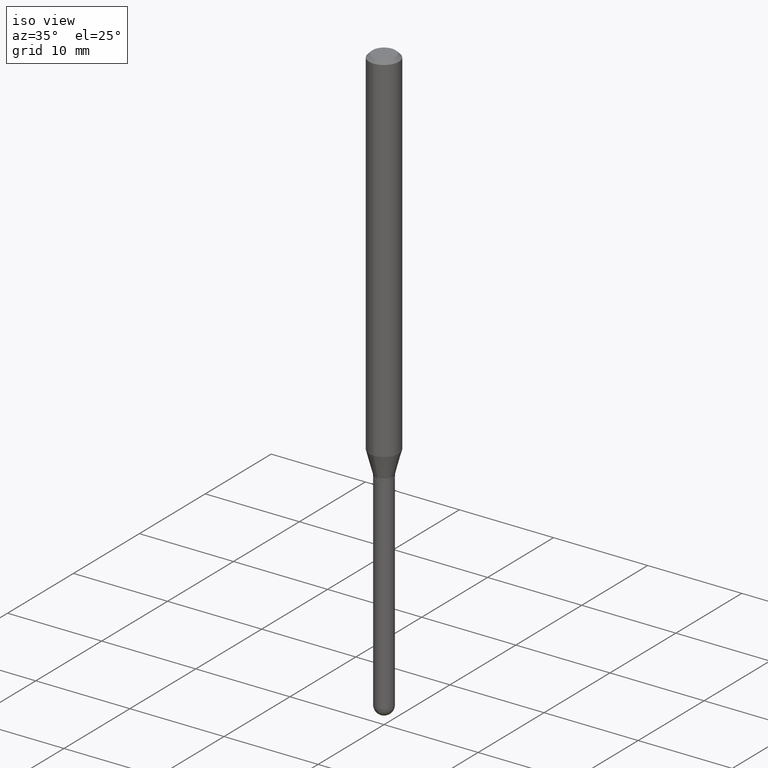
[diagram: clean part render]
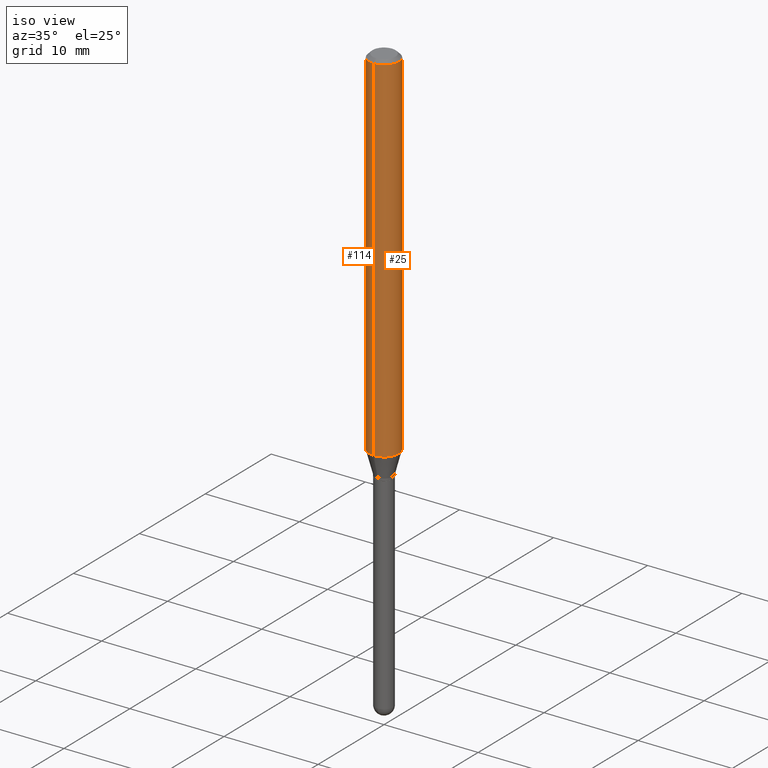
[diagram: same view with one multi-face feature highlighted, each face labeled with its STEP entity id]
A machine part, iso view. The highlighted faces form ONE feature: a constant-radius fillet chain: 2 tangent blend faces with common blend radius 1.5875 mm. The faces share edges in the B-rep.
Their STEP definitions:
[1] entity #114 (Cylinder):
#2 = VECTOR ( 'NONE', #90, 39.37007874015748143 ) ;
#12 = VERTEX_POINT ( 'NONE', #308 ) ;
#49 = DIRECTION ( 'NONE',  ( -2.445407841121714542E-29, 3.491568644283881835E-15, 1.000000000000000000 ) ) ;
#50 = DIRECTION ( 'NONE',  ( -2.445407841121714542E-29, 3.491568644283881835E-15, 1.000000000000000000 ) ) ;
#52 = AXIS2_PLACEMENT_3D ( 'NONE', #436, #50, #198 ) ;
#78 = DIRECTION ( 'NONE',  ( -2.445407841121714542E-29, 3.491568644283881835E-15, 1.000000000000000000 ) ) ;
#87 = FACE_OUTER_BOUND ( 'NONE', #239, .T. ) ;
#90 = DIRECTION ( 'NONE',  ( -2.445407841121714822E-29, 3.491568644283881835E-15, 1.000000000000000000 ) ) ;
#114 = ADVANCED_FACE ( 'NONE', ( #87 ), #477, .T. ) ;
#118 = CARTESIAN_POINT ( 'NONE',  ( -4.364351673553916201E-16, -0.06250000000000000000, 2.182230402677425900E-16 ) ) ;
#121 = CARTESIAN_POINT ( 'NONE',  ( -4.364351673553553325E-16, -0.06250000000000525968, -1.496698729810778117 ) ) ;
#129 = CARTESIAN_POINT ( 'NONE',  ( 4.440892098500625669E-16, 0.06250000000000000000, -2.182230402677425900E-16 ) ) ;
#168 = CIRCLE ( 'NONE', #306, 0.06250000000000000000 ) ;
#174 = EDGE_CURVE ( 'NONE', #12, #242, #279, .T. ) ;
#183 = AXIS2_PLACEMENT_3D ( 'NONE', #273, #49, #318 ) ;
#193 = ORIENTED_EDGE ( 'NONE', *, *, #174, .F. ) ;
#198 = DIRECTION ( 'NONE',  ( -6.982962677686265922E-15, -1.000000000000000000, 3.483106191921935554E-15 ) ) ;
#222 = ORIENTED_EDGE ( 'NONE', *, *, #227, .T. ) ;
#227 = EDGE_CURVE ( 'NONE', #232, #242, #379, .T. ) ;
#232 = VERTEX_POINT ( 'NONE', #121 ) ;
#239 = EDGE_LOOP ( 'NONE', ( #430, #247, #222, #193 ) ) ;
#242 = VERTEX_POINT ( 'NONE', #290 ) ;
#247 = ORIENTED_EDGE ( 'NONE', *, *, #295, .T. ) ;
#250 = VECTOR ( 'NONE', #400, 39.37007874015748143 ) ;
#273 = CARTESIAN_POINT ( 'NONE',  ( 0.000000000000000000, 0.000000000000000000, 0.000000000000000000 ) ) ;
#279 = CIRCLE ( 'NONE', #52, 0.06250000000000000000 ) ;
#283 = VERTEX_POINT ( 'NONE', #424 ) ;
#290 = CARTESIAN_POINT ( 'NONE',  ( -4.364351673553912750E-16, -0.06250000000000005551, -0.01500000000000011047 ) ) ;
#294 = DIRECTION ( 'NONE',  ( -6.982962677686265922E-15, -1.000000000000000000, 4.370956789862821150E-15 ) ) ;
#295 = EDGE_CURVE ( 'NONE', #283, #232, #168, .T. ) ;
#306 = AXIS2_PLACEMENT_3D ( 'NONE', #499, #78, #294 ) ;
#308 = CARTESIAN_POINT ( 'NONE',  ( 4.440892098500993968E-16, 0.06249999999999993755, -0.01500000000000054588 ) ) ;
#318 = DIRECTION ( 'NONE',  ( -6.982962677686265922E-15, -1.000000000000000000, 3.491568644283881440E-15 ) ) ;
#379 = LINE ( 'NONE', #118, #250 ) ;
#400 = DIRECTION ( 'NONE',  ( -2.445407841121714822E-29, 3.491568644283881835E-15, 1.000000000000000000 ) ) ;
#424 = CARTESIAN_POINT ( 'NONE',  ( 4.440892098500988052E-16, 0.06249999999999474032, -1.496698729810778783 ) ) ;
#430 = ORIENTED_EDGE ( 'NONE', *, *, #500, .F. ) ;
#436 = CARTESIAN_POINT ( 'NONE',  ( 3.668111761682651932E-31, -5.237352966425937531E-17, -0.01500000000000032904 ) ) ;
#474 = LINE ( 'NONE', #129, #2 ) ;
#477 = CYLINDRICAL_SURFACE ( 'NONE', #183, 0.06250000000000000000 ) ;
#499 = CARTESIAN_POINT ( 'NONE',  ( 3.660038809676187472E-29, -5.225826354946828234E-15, -1.496698729810778339 ) ) ;
#500 = EDGE_CURVE ( 'NONE', #283, #12, #474, .T. ) ;
[2] entity #25 (Cylinder):
#2 = VECTOR ( 'NONE', #90, 39.37007874015748143 ) ;
#12 = VERTEX_POINT ( 'NONE', #308 ) ;
#16 = CYLINDRICAL_SURFACE ( 'NONE', #334, 0.06250000000000000000 ) ;
#25 = ADVANCED_FACE ( 'NONE', ( #471 ), #16, .T. ) ;
#40 = EDGE_CURVE ( 'NONE', #232, #283, #258, .T. ) ;
#44 = DIRECTION ( 'NONE',  ( -2.445407841121714542E-29, 3.491568644283881835E-15, 1.000000000000000000 ) ) ;
#51 = DIRECTION ( 'NONE',  ( -2.445407841121714542E-29, 3.491568644283881835E-15, 1.000000000000000000 ) ) ;
#86 = CARTESIAN_POINT ( 'NONE',  ( 3.660038809676187472E-29, -5.225826354946828234E-15, -1.496698729810778339 ) ) ;
#90 = DIRECTION ( 'NONE',  ( -2.445407841121714822E-29, 3.491568644283881835E-15, 1.000000000000000000 ) ) ;
#96 = AXIS2_PLACEMENT_3D ( 'NONE', #341, #469, #345 ) ;
#118 = CARTESIAN_POINT ( 'NONE',  ( -4.364351673553916201E-16, -0.06250000000000000000, 2.182230402677425900E-16 ) ) ;
#121 = CARTESIAN_POINT ( 'NONE',  ( -4.364351673553553325E-16, -0.06250000000000525968, -1.496698729810778117 ) ) ;
#129 = CARTESIAN_POINT ( 'NONE',  ( 4.440892098500625669E-16, 0.06250000000000000000, -2.182230402677425900E-16 ) ) ;
#180 = ORIENTED_EDGE ( 'NONE', *, *, #227, .F. ) ;
#227 = EDGE_CURVE ( 'NONE', #232, #242, #379, .T. ) ;
#229 = ORIENTED_EDGE ( 'NONE', *, *, #500, .T. ) ;
#232 = VERTEX_POINT ( 'NONE', #121 ) ;
#242 = VERTEX_POINT ( 'NONE', #290 ) ;
#250 = VECTOR ( 'NONE', #400, 39.37007874015748143 ) ;
#258 = CIRCLE ( 'NONE', #439, 0.06250000000000000000 ) ;
#283 = VERTEX_POINT ( 'NONE', #424 ) ;
#290 = CARTESIAN_POINT ( 'NONE',  ( -4.364351673553912750E-16, -0.06250000000000005551, -0.01500000000000011047 ) ) ;
#308 = CARTESIAN_POINT ( 'NONE',  ( 4.440892098500993968E-16, 0.06249999999999993755, -0.01500000000000054588 ) ) ;
#334 = AXIS2_PLACEMENT_3D ( 'NONE', #394, #51, #428 ) ;
#341 = CARTESIAN_POINT ( 'NONE',  ( 3.668111761682651932E-31, -5.237352966425937531E-17, -0.01500000000000032904 ) ) ;
#345 = DIRECTION ( 'NONE',  ( -6.982962677686265922E-15, -1.000000000000000000, 3.483106191921935554E-15 ) ) ;
#358 = EDGE_LOOP ( 'NONE', ( #371, #229, #399, #180 ) ) ;
#371 = ORIENTED_EDGE ( 'NONE', *, *, #40, .T. ) ;
#379 = LINE ( 'NONE', #118, #250 ) ;
#386 = DIRECTION ( 'NONE',  ( -6.982962677686265922E-15, -1.000000000000000000, 4.370956789862821150E-15 ) ) ;
#394 = CARTESIAN_POINT ( 'NONE',  ( 0.000000000000000000, 0.000000000000000000, 0.000000000000000000 ) ) ;
#399 = ORIENTED_EDGE ( 'NONE', *, *, #492, .F. ) ;
#400 = DIRECTION ( 'NONE',  ( -2.445407841121714822E-29, 3.491568644283881835E-15, 1.000000000000000000 ) ) ;
#424 = CARTESIAN_POINT ( 'NONE',  ( 4.440892098500988052E-16, 0.06249999999999474032, -1.496698729810778783 ) ) ;
#428 = DIRECTION ( 'NONE',  ( -6.982962677686265922E-15, -1.000000000000000000, 3.491568644283881440E-15 ) ) ;
#434 = CIRCLE ( 'NONE', #96, 0.06250000000000000000 ) ;
#439 = AXIS2_PLACEMENT_3D ( 'NONE', #86, #44, #386 ) ;
#469 = DIRECTION ( 'NONE',  ( -2.445407841121714542E-29, 3.491568644283881835E-15, 1.000000000000000000 ) ) ;
#471 = FACE_OUTER_BOUND ( 'NONE', #358, .T. ) ;
#474 = LINE ( 'NONE', #129, #2 ) ;
#492 = EDGE_CURVE ( 'NONE', #242, #12, #434, .T. ) ;
#500 = EDGE_CURVE ( 'NONE', #283, #12, #474, .T. ) ;